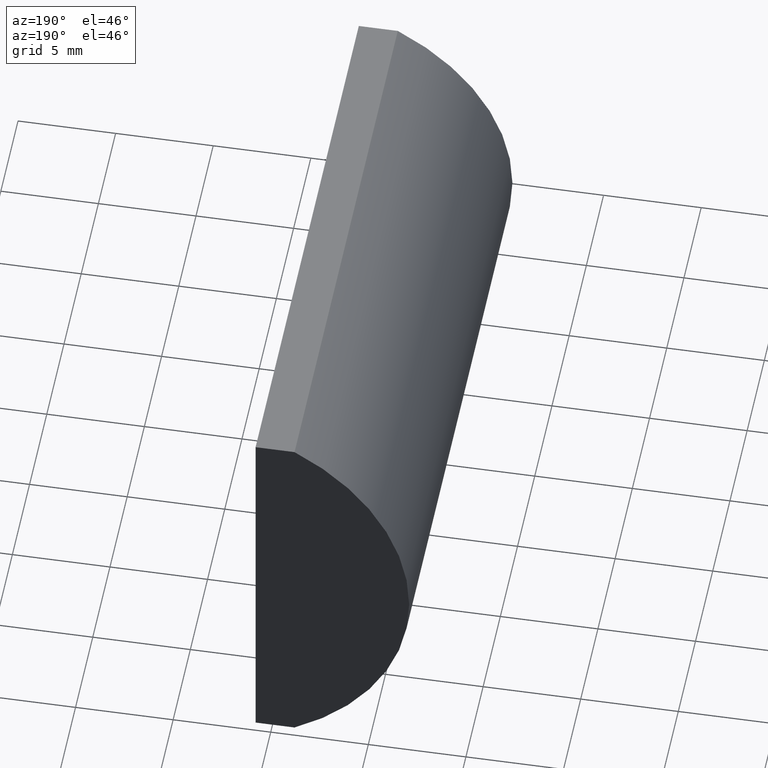
[diagram: clean part render]
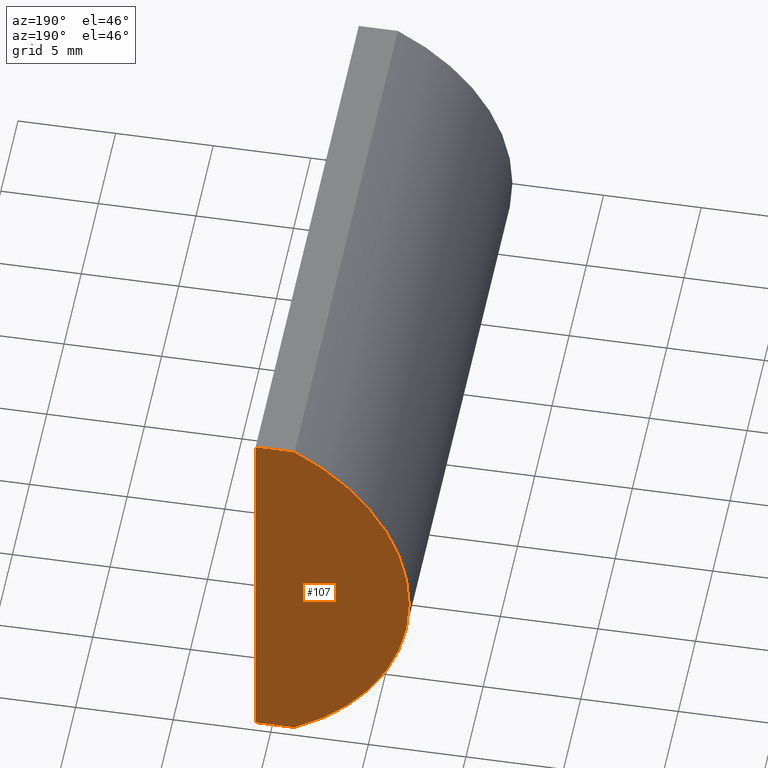
[diagram: same view with one face highlighted and labeled with its STEP entity id]
A machine part, auxiliary view. The second image highlights one B-rep face of the part: STEP entity #107.
In plain terms, the highlighted planar face has unit normal (0, 1, 0).
Its self-contained STEP definition (entity closure, byte-faithful):
#4 = EDGE_CURVE ( 'NONE', #175, #183, #56, .T. ) ;
#18 = DIRECTION ( 'NONE',  ( 0.0000000000000000000, 1.000000000000000000, 0.0000000000000000000 ) ) ;
#23 = CARTESIAN_POINT ( 'NONE',  ( -1.221757203477694200, 30.00000000000000000, 10.00000000000000000 ) ) ;
#25 = ORIENTED_EDGE ( 'NONE', *, *, #173, .T. ) ;
#26 = LINE ( 'NONE', #59, #34 ) ;
#34 = VECTOR ( 'NONE', #111, 1000.000000000000000 ) ;
#37 = DIRECTION ( 'NONE',  ( 0.0000000000000000000, 1.000000000000000000, 0.0000000000000000000 ) ) ;
#39 = ORIENTED_EDGE ( 'NONE', *, *, #74, .T. ) ;
#42 = CARTESIAN_POINT ( 'NONE',  ( -1.221757203477650000, 30.00000000000000000, -10.00000000000000000 ) ) ;
#53 = LINE ( 'NONE', #169, #160 ) ;
#56 = CIRCLE ( 'NONE', #97, 11.45000000000001200 ) ;
#59 = CARTESIAN_POINT ( 'NONE',  ( -1.221757203477694200, 30.00000000000000000, 10.00000000000000000 ) ) ;
#68 = VERTEX_POINT ( 'NONE', #124 ) ;
#71 = CARTESIAN_POINT ( 'NONE',  ( 0.7752043348512593900, 30.00000000000000000, -10.00000000000000400 ) ) ;
#74 = EDGE_CURVE ( 'NONE', #183, #68, #26, .T. ) ;
#82 = CARTESIAN_POINT ( 'NONE',  ( 0.7752043348512593900, 30.00000000000000000, -10.00000000000000400 ) ) ;
#85 = AXIS2_PLACEMENT_3D ( 'NONE', #98, #18, #178 ) ;
#87 = FACE_OUTER_BOUND ( 'NONE', #127, .T. ) ;
#97 = AXIS2_PLACEMENT_3D ( 'NONE', #143, #37, #108 ) ;
#98 = CARTESIAN_POINT ( 'NONE',  ( 4.355204334851265500, 30.00000000000000000, 4.286263797015675000E-017 ) ) ;
#107 = ADVANCED_FACE ( 'NONE', ( #87 ), #203, .T. ) ;
#108 = DIRECTION ( 'NONE',  ( 0.0000000000000000000, 0.0000000000000000000, 1.000000000000000000 ) ) ;
#111 = DIRECTION ( 'NONE',  ( 1.000000000000000000, 0.0000000000000000000, 0.0000000000000000000 ) ) ;
#112 = VECTOR ( 'NONE', #138, 1000.000000000000000 ) ;
#116 = ORIENTED_EDGE ( 'NONE', *, *, #4, .T. ) ;
#124 = CARTESIAN_POINT ( 'NONE',  ( 0.7752043348512655000, 30.00000000000000000, 10.00000000000000000 ) ) ;
#125 = VERTEX_POINT ( 'NONE', #71 ) ;
#127 = EDGE_LOOP ( 'NONE', ( #116, #39, #25, #188 ) ) ;
#138 = DIRECTION ( 'NONE',  ( -3.035766082959411900E-016, -0.0000000000000000000, -1.000000000000000000 ) ) ;
#143 = CARTESIAN_POINT ( 'NONE',  ( 4.355204334851265500, 30.00000000000000000, 4.286263797015675000E-017 ) ) ;
#156 = LINE ( 'NONE', #82, #112 ) ;
#160 = VECTOR ( 'NONE', #170, 1000.000000000000000 ) ;
#169 = CARTESIAN_POINT ( 'NONE',  ( -1.221757203477650000, 30.00000000000000000, -10.00000000000000000 ) ) ;
#170 = DIRECTION ( 'NONE',  ( -1.000000000000000000, -0.0000000000000000000, 1.737362931314593500E-015 ) ) ;
#173 = EDGE_CURVE ( 'NONE', #68, #125, #156, .T. ) ;
#175 = VERTEX_POINT ( 'NONE', #42 ) ;
#178 = DIRECTION ( 'NONE',  ( 0.0000000000000000000, -0.0000000000000000000, 1.000000000000000000 ) ) ;
#183 = VERTEX_POINT ( 'NONE', #23 ) ;
#188 = ORIENTED_EDGE ( 'NONE', *, *, #202, .T. ) ;
#202 = EDGE_CURVE ( 'NONE', #125, #175, #53, .T. ) ;
#203 = PLANE ( 'NONE',  #85 ) ;